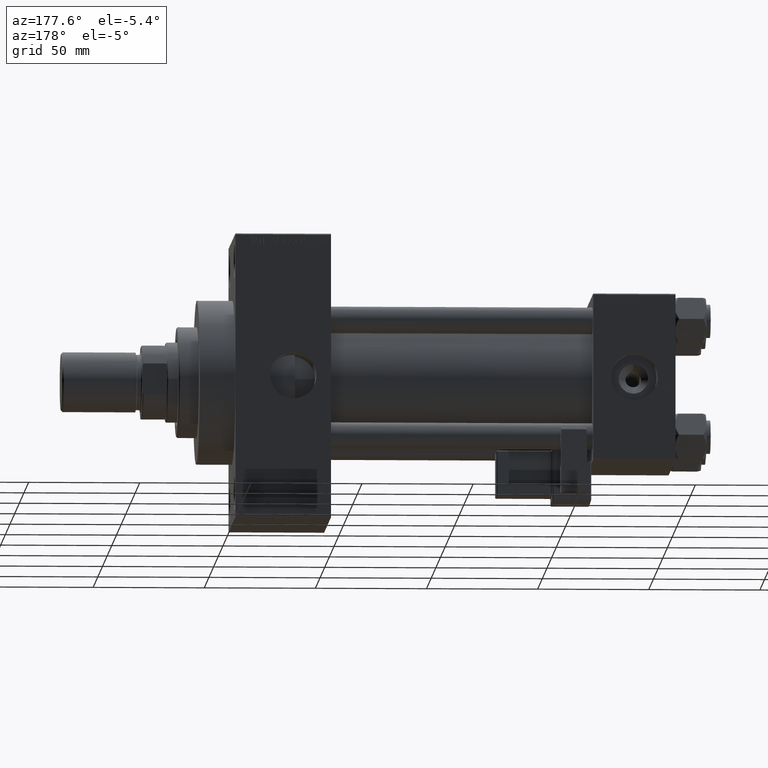
[diagram: clean part render]
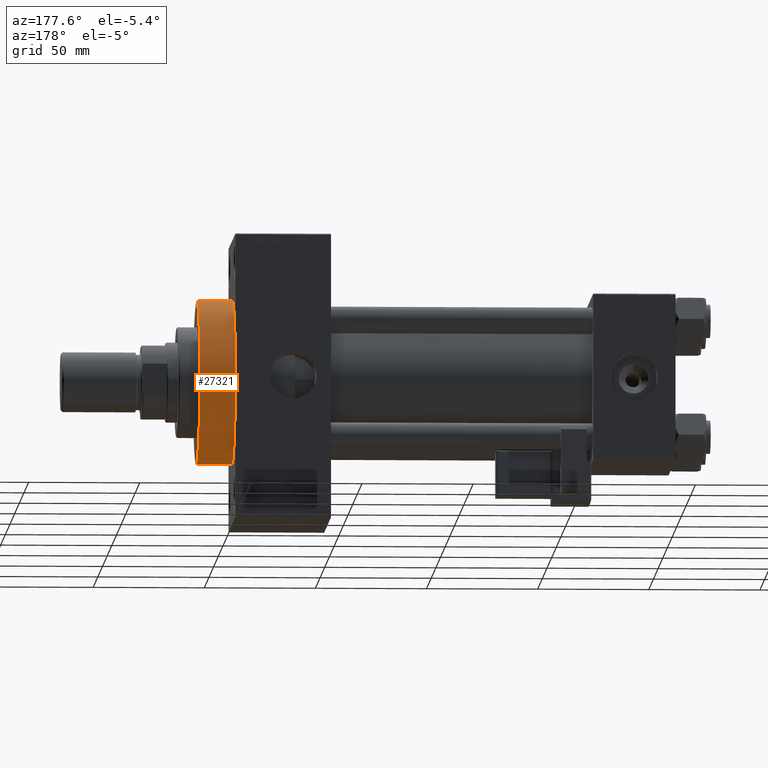
[diagram: same view with one face highlighted and labeled with its STEP entity id]
A machine part, auxiliary view. The second image highlights one B-rep face of the part: STEP entity #27321.
In plain terms, the highlighted cylindrical surface (partial cylindrical patch) has radius 37 mm, axis along (-1, -0, -0).
Its self-contained STEP definition (entity closure, byte-faithful):
#81 = EDGE_CURVE ( 'NONE', #50618, #4396, #1929, .T. ) ;
#350 = CARTESIAN_POINT ( 'NONE',  ( 198.0000000000000000, 0.000000000000000000, 37.00000000000000000 ) ) ;
#671 = EDGE_CURVE ( 'NONE', #50618, #23514, #20019, .T. ) ;
#1685 = EDGE_CURVE ( 'NONE', #23514, #47371, #44603, .T. ) ;
#1929 = CIRCLE ( 'NONE', #37997, 37.00000000000000000 ) ;
#2031 = CARTESIAN_POINT ( 'NONE',  ( 214.0000000000000284, 0.000000000000000000, 0.000000000000000000 ) ) ;
#4396 = VERTEX_POINT ( 'NONE', #34519 ) ;
#5982 = DIRECTION ( 'NONE',  ( -1.000000000000000000, -0.000000000000000000, -0.000000000000000000 ) ) ;
#6596 = ORIENTED_EDGE ( 'NONE', *, *, #33676, .F. ) ;
#11281 = CARTESIAN_POINT ( 'NONE',  ( 214.0000000000000284, 0.000000000000000000, 0.000000000000000000 ) ) ;
#12853 = LINE ( 'NONE', #14393, #41372 ) ;
#14393 = CARTESIAN_POINT ( 'NONE',  ( 214.0000000000000284, 0.000000000000000000, 37.00000000000000000 ) ) ;
#14698 = AXIS2_PLACEMENT_3D ( 'NONE', #2031, #43439, #18066 ) ;
#17014 = ORIENTED_EDGE ( 'NONE', *, *, #671, .T. ) ;
#18066 = DIRECTION ( 'NONE',  ( 0.000000000000000000, 0.000000000000000000, 1.000000000000000000 ) ) ;
#20019 = LINE ( 'NONE', #35523, #48872 ) ;
#22456 = ORIENTED_EDGE ( 'NONE', *, *, #1685, .T. ) ;
#23514 = VERTEX_POINT ( 'NONE', #40394 ) ;
#27321 = ADVANCED_FACE ( 'NONE', ( #38004 ), #50333, .T. ) ;
#28671 = AXIS2_PLACEMENT_3D ( 'NONE', #41214, #36232, #40170 ) ;
#33676 = EDGE_CURVE ( 'NONE', #4396, #47371, #12853, .T. ) ;
#34519 = CARTESIAN_POINT ( 'NONE',  ( 214.0000000000000284, 0.000000000000000000, 37.00000000000000000 ) ) ;
#34646 = DIRECTION ( 'NONE',  ( 0.000000000000000000, 0.000000000000000000, -1.000000000000000000 ) ) ;
#34989 = DIRECTION ( 'NONE',  ( -1.000000000000000000, -0.000000000000000000, -0.000000000000000000 ) ) ;
#35523 = CARTESIAN_POINT ( 'NONE',  ( 214.0000000000000284, 4.531193156845206793E-15, -37.00000000000000000 ) ) ;
#36232 = DIRECTION ( 'NONE',  ( 1.000000000000000000, 0.000000000000000000, 0.000000000000000000 ) ) ;
#37997 = AXIS2_PLACEMENT_3D ( 'NONE', #11281, #43326, #34646 ) ;
#38004 = FACE_OUTER_BOUND ( 'NONE', #45572, .T. ) ;
#40170 = DIRECTION ( 'NONE',  ( 0.000000000000000000, 0.000000000000000000, -1.000000000000000000 ) ) ;
#40394 = CARTESIAN_POINT ( 'NONE',  ( 198.0000000000000000, 4.531193156845206793E-15, -37.00000000000000000 ) ) ;
#41214 = CARTESIAN_POINT ( 'NONE',  ( 198.0000000000000000, 0.000000000000000000, 0.000000000000000000 ) ) ;
#41372 = VECTOR ( 'NONE', #5982, 1000.000000000000000 ) ;
#43326 = DIRECTION ( 'NONE',  ( 1.000000000000000000, 0.000000000000000000, 0.000000000000000000 ) ) ;
#43439 = DIRECTION ( 'NONE',  ( -1.000000000000000000, -0.000000000000000000, -0.000000000000000000 ) ) ;
#44603 = CIRCLE ( 'NONE', #28671, 37.00000000000000000 ) ;
#45177 = ORIENTED_EDGE ( 'NONE', *, *, #81, .F. ) ;
#45427 = CARTESIAN_POINT ( 'NONE',  ( 214.0000000000000284, 4.531193156845206793E-15, -37.00000000000000000 ) ) ;
#45572 = EDGE_LOOP ( 'NONE', ( #45177, #17014, #22456, #6596 ) ) ;
#47371 = VERTEX_POINT ( 'NONE', #350 ) ;
#48872 = VECTOR ( 'NONE', #34989, 1000.000000000000000 ) ;
#50333 = CYLINDRICAL_SURFACE ( 'NONE', #14698, 37.00000000000000000 ) ;
#50618 = VERTEX_POINT ( 'NONE', #45427 ) ;